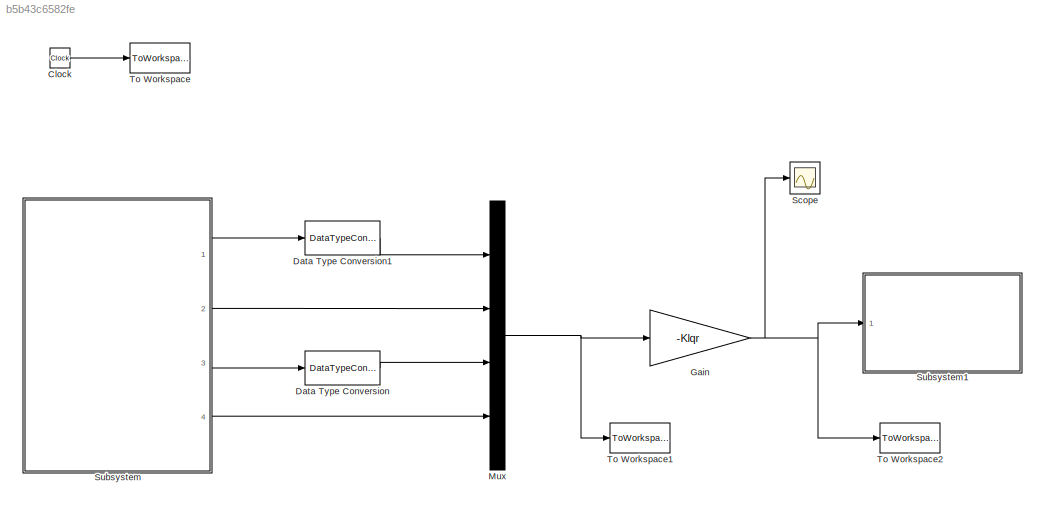
MODEL slx_b5b43c6582fe
KIND model
CONFIG AbsTol = auto
CONFIG EnableMultiTasking = on
CONFIG FixedStep = auto
CONFIG MaxStep = auto
CONFIG MinStep = auto
CONFIG RelTol = 1e-3
CONFIG SampleTimeConstraint = Unconstrained
CONFIG Solver = ode45
CONFIG SolverName = ode45
CONFIG StartTime = 0.0
CONFIG StopTime = 10.0
BLOCK [Clock] Clock
BLOCK [DataTypeConversion] Data Type Conversion
  OutDataTypeStr = double
  RndMeth = Floor
  SaturateOnIntegerOverflow = off
BLOCK [DataTypeConversion] Data Type Conversion1
  OutDataTypeStr = double
  RndMeth = Floor
  SaturateOnIntegerOverflow = off
BLOCK [Gain] Gain
  Gain = -Klqr
  Multiplication = Matrix(K*u)
  OutDataTypeStr = Inherit: Inherit via internal rule
  ParamDataTypeStr = Inherit: Inherit via internal rule
  SaturateOnIntegerOverflow = off
BLOCK [Mux] Mux
  DisplayOption = bar
  Ports = [4, 1]
BLOCK [Scope] Scope
  NumInputPorts = 1
  Ports = [1]
  ScopeSpecificationString = C++SS(StrPVP('Location','[188, 365, 512, 604]'),StrPVP('Open','off'),MxPVP('AxesTitles',24,'struct(''axes1'',''%<SignalLabel>'')'),StrPVP('SaveName','ScopeData2'),StrPVP('LimitDataPoints','on'),StrPVP('DataFormat','Array'),StrPVP('Decimation','1'),StrPVP('BlockParamSampleInput','off'))
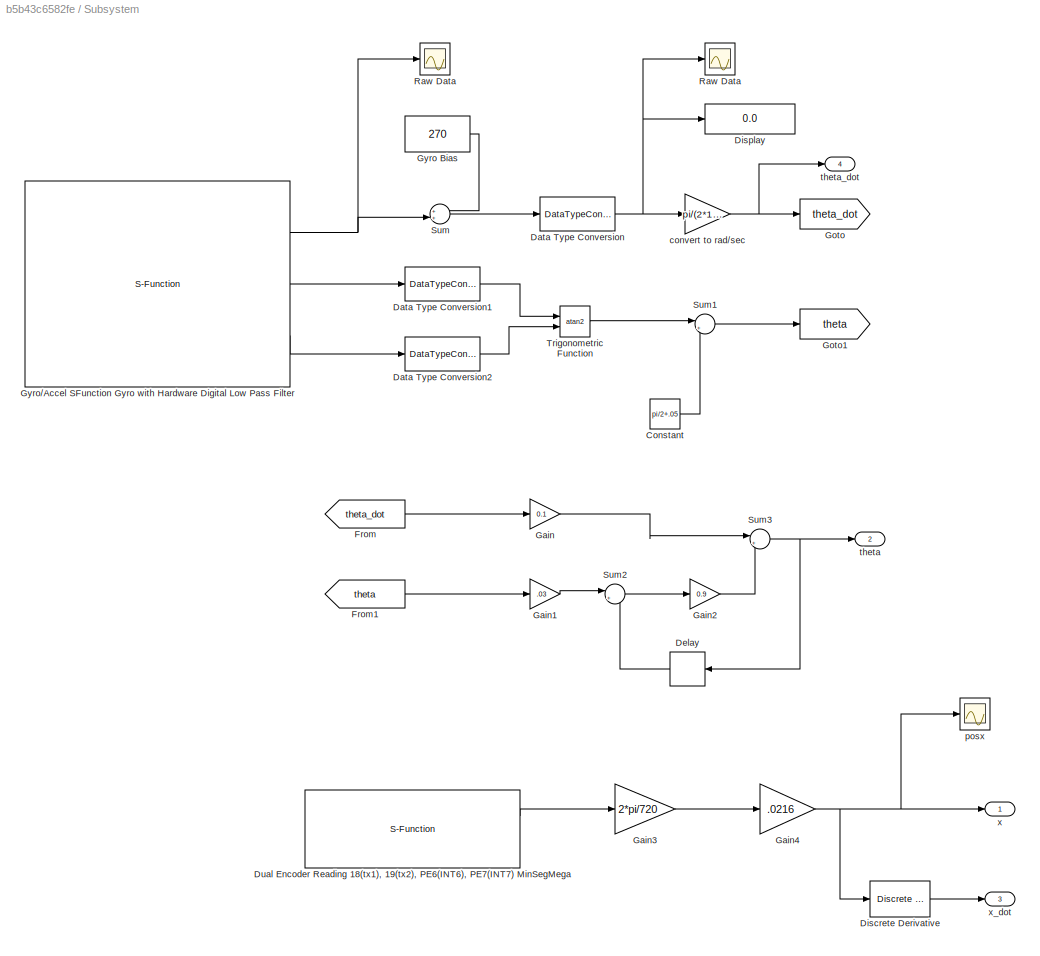
BLOCK [SubSystem] Subsystem
  Ports = [0, 4]
  RequestExecContextInheritance = off
  Variant = off
BLOCK [Constant] Subsystem/Constant
  Value = pi/2+.05
BLOCK [DataTypeConversion] Subsystem/Data Type Conversion
  OutDataTypeStr = double
  RndMeth = Floor
  SaturateOnIntegerOverflow = off
BLOCK [DataTypeConversion] Subsystem/Data Type Conversion1
  OutDataTypeStr = double
  RndMeth = Floor
  SaturateOnIntegerOverflow = off
BLOCK [DataTypeConversion] Subsystem/Data Type Conversion2
  OutDataTypeStr = double
  RndMeth = Floor
  SaturateOnIntegerOverflow = off
BLOCK [Delay] Subsystem/Delay
  DelayLength = 1
  InputPortMap = u0
  Ports = [1, 1]
BLOCK [Reference] Subsystem/Discrete Derivative  REF=simulink/Discrete/Discrete Derivative
  Ports = [1, 1]
  SourceBlock = simulink/Discrete/Discrete Derivative
  SourceType = Discrete Derivative
BLOCK [Display] Subsystem/Display
  Decimation = 1
  Ports = [1]
BLOCK [S-Function] Subsystem/Dual Encoder Reading 18(tx1), 19(tx2), PE6(INT6), PE7(INT7) MinSegMega 
  CopyFcn = set_param(gcbh,'LinkStatus','none')
  EnableBusSupport = off
  FunctionName = sf_QuadEncoder_18_19_INT6_INT7
  InitFcn = try, set_param(gcb,'FunctionName','sf_QuadEncoder_18_19_INT6_INT7'), end
  OpenFcn = sfunctionwizard(gcbh)
  Parameters = uint8([0 1]),uint8([18 6]),uint8([19 7])
  Ports = [0, 2]
  PreSaveFcn = try, set_param(gcb,'FunctionName','sf_QuadEncoder_18_19_INT6_INT7'), end
  SFcnIsStateOwnerBlock = off
  SFunctionDeploymentMode = off
  SFunctionModules = sf_QuadEncoder_18_19_INT6_INT7_wrapper
BLOCK [From] Subsystem/From
  GotoTag = theta_dot
BLOCK [From] Subsystem/From1
  GotoTag = theta
BLOCK [Gain] Subsystem/Gain
  Gain = 0.1
  OutDataTypeStr = Inherit: Inherit via internal rule
  ParamDataTypeStr = Inherit: Inherit via internal rule
  SaturateOnIntegerOverflow = off
BLOCK [Gain] Subsystem/Gain1
  Gain = .03
  OutDataTypeStr = Inherit: Inherit via internal rule
  ParamDataTypeStr = Inherit: Inherit via internal rule
  SaturateOnIntegerOverflow = off
BLOCK [Gain] Subsystem/Gain2
  Gain = 0.9
  OutDataTypeStr = Inherit: Inherit via internal rule
  ParamDataTypeStr = Inherit: Inherit via internal rule
  SaturateOnIntegerOverflow = off
BLOCK [Gain] Subsystem/Gain3
  Gain = 2*pi/720
  OutDataTypeStr = Inherit: Inherit via internal rule
  ParamDataTypeStr = Inherit: Inherit via internal rule
  SaturateOnIntegerOverflow = off
BLOCK [Gain] Subsystem/Gain4
  Gain = .0216
  OutDataTypeStr = Inherit: Inherit via internal rule
  ParamDataTypeStr = Inherit: Inherit via internal rule
  SaturateOnIntegerOverflow = off
BLOCK [Goto] Subsystem/Goto
  GotoTag = theta_dot
BLOCK [Goto] Subsystem/Goto1
  GotoTag = theta
BLOCK [Constant] Subsystem/Gyro Bias
  Value = 270
BLOCK [S-Function] Subsystem/Gyro//Accel SFunction Gyro with Hardware Digital Low Pass Filter
  CopyFcn = set_param(gcbh,'LinkStatus','none')
  EnableBusSupport = off
  FunctionName = sf_MPU6050_Driver_GxAyz
  InitFcn = try, set_param(gcb,'FunctionName','sf_MPU6050_Driver_GxAyz'), end
  OpenFcn = sfunctionwizard(gcbh)
  Ports = [0, 3]
  PreSaveFcn = try, set_param(gcb,'FunctionName','sf_MPU6050_Driver_GxAyz'), end
  SFcnIsStateOwnerBlock = off
  SFunctionDeploymentMode = off
  SFunctionModules = sf_MPU6050_Driver_GxAyz_wrapper
BLOCK [Scope] Subsystem/Raw Data
  NumInputPorts = 1
  Ports = [1]
  ScopeSpecificationString = Simulink.scopes.TimeScopeBlockCfg('CurrentConfiguration', extmgr.ConfigurationSet(extmgr.Configuration('Core','General UI',true),extmgr.Configuration('Core','Source UI',true),extmgr.Configuration('Sources','WiredSimulink',true,'DataLoggingVariableName','ScopeData1','DataLoggingLimitDataPoints',true,'DataLoggingSaveFormat','Array','DataLoggingDecimation','1','DataLoggingDecimateData',true),extmgr.C...<+1648ch>
BLOCK [Scope] Subsystem/Raw Data 
  NumInputPorts = 1
  Ports = [1]
  ScopeSpecificationString = C++SS(StrPVP('Location','[1013, 332, 1337, 571]'),StrPVP('Open','off'),MxPVP('AxesTitles',24,'struct(''axes1'',''%<SignalLabel>'')'),MxPVP('ScopeGraphics',28,'struct(''FigureColor'',''[0.5 0.5 0.5]'',''AxesColor'',''[0 0 0]'',''AxesTickColor'',''[1 1 1]'',''LineColors'',''[1 1 0;1 0 1;0 1 1;1 0 0;0 1 0;0 0 1]'',''LineStyles'',''-|-|-|-|-|-'',''LineWidths'',''[0.5 0.5 0.5 0.5 0.5 0.5]'',''MarkerSty...<+166ch>
BLOCK [Sum] Subsystem/Sum
  IconShape = round
  InputSameDT = off
  Inputs = ++|
  OutDataTypeStr = Inherit: Inherit via internal rule
  Ports = [2, 1]
  SaturateOnIntegerOverflow = off
BLOCK [Sum] Subsystem/Sum1
  IconShape = round
  InputSameDT = off
  Inputs = |++
  OutDataTypeStr = Inherit: Inherit via internal rule
  Ports = [2, 1]
  SaturateOnIntegerOverflow = off
BLOCK [Sum] Subsystem/Sum2
  IconShape = round
  InputSameDT = off
  Inputs = |++
  OutDataTypeStr = Inherit: Inherit via internal rule
  Ports = [2, 1]
  SaturateOnIntegerOverflow = off
BLOCK [Sum] Subsystem/Sum3
  IconShape = round
  InputSameDT = off
  Inputs = |++
  OutDataTypeStr = Inherit: Inherit via internal rule
  Ports = [2, 1]
  SaturateOnIntegerOverflow = off
BLOCK [Trigonometry] Subsystem/Trigonometric Function
  Operator = atan2
  Ports = [2, 1]
BLOCK [Gain] Subsystem/convert to rad//sec
  Gain = pi/(2*1.15e4)
  OutDataTypeStr = Inherit: Inherit via internal rule
  ParamDataTypeStr = Inherit: Inherit via internal rule
  SaturateOnIntegerOverflow = off
BLOCK [Scope] Subsystem/posx
  NumInputPorts = 1
  Ports = [1]
  ScopeSpecificationString = C++SS(StrPVP('Location','[1137, 298, 1461, 537]'),StrPVP('Open','off'),MxPVP('AxesTitles',24,'struct(''axes1'',''%<SignalLabel>'')'),MxPVP('ScopeGraphics',28,'struct(''FigureColor'',''[0.5 0.5 0.5]'',''AxesColor'',''[0 0 0]'',''AxesTickColor'',''[1 1 1]'',''LineColors'',''[1 1 0;1 0 1;0 1 1;1 0 0;0 1 0;0 0 1]'',''LineStyles'',''-|-|-|-|-|-'',''LineWidths'',''[0.5 0.5 0.5 0.5 0.5 0.5]'',''MarkerSty...<+270ch>
BLOCK [Outport] Subsystem/theta 
  IconDisplay = Port number
  Port = 2
BLOCK [Outport] Subsystem/theta_dot 
  IconDisplay = Port number
  Port = 4
BLOCK [Outport] Subsystem/x
  IconDisplay = Port number
BLOCK [Outport] Subsystem/x_dot
  IconDisplay = Port number
  Port = 3
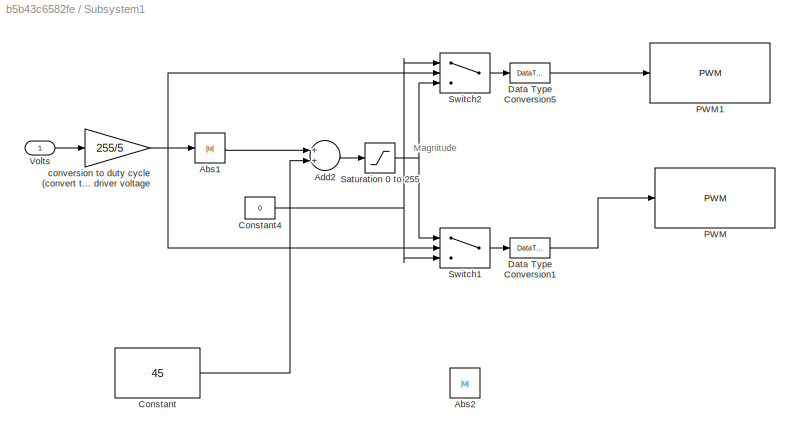
BLOCK [SubSystem] Subsystem1
  Ports = [1]
  RequestExecContextInheritance = off
  Variant = off
BLOCK [Abs] Subsystem1/Abs1
  SaturateOnIntegerOverflow = off
BLOCK [Abs] Subsystem1/Abs2
  SaturateOnIntegerOverflow = off
BLOCK [Sum] Subsystem1/Add2
  InputSameDT = off
  OutDataTypeStr = Inherit: Inherit via internal rule
  Ports = [2, 1]
  SaturateOnIntegerOverflow = off
BLOCK [Constant] Subsystem1/Constant
  Value = 45
BLOCK [Constant] Subsystem1/Constant4
  Value = 0
BLOCK [DataTypeConversion] Subsystem1/Data Type Conversion1
  OutDataTypeStr = uint8
  RndMeth = Floor
  SaturateOnIntegerOverflow = off
BLOCK [DataTypeConversion] Subsystem1/Data Type Conversion5
  OutDataTypeStr = uint8
  RndMeth = Floor
  SaturateOnIntegerOverflow = off
BLOCK [Reference] Subsystem1/PWM  REF=arduinolib/PWM
  Ports = [1]
  SourceBlock = arduinolib/PWM
  SourceType = Arduino PWM
BLOCK [Reference] Subsystem1/PWM1  REF=arduinolib/PWM
  Ports = [1]
  SourceBlock = arduinolib/PWM
  SourceType = Arduino PWM
BLOCK [Saturate] Subsystem1/Saturation 0 to 255
  InputPortMap = u0
  LowerLimit = 0
  Ports = [1, 1]
  UpperLimit = 255
BLOCK [Switch] Subsystem1/Switch1
  InputSameDT = off
  SaturateOnIntegerOverflow = off
BLOCK [Switch] Subsystem1/Switch2
  InputSameDT = off
  SaturateOnIntegerOverflow = off
BLOCK [Inport] Subsystem1/Volts
  IconDisplay = Port number
BLOCK [Gain] Subsystem1/conversion to duty cycle (convert to int) denominator is motor driver voltage
  Gain = 255/5
  OutDataTypeStr = int16
  ParamDataTypeStr = Inherit: Inherit via internal rule
  SaturateOnIntegerOverflow = off
BLOCK [ToWorkspace] To Workspace
  FixptAsFi = on
  MaxDataPoints = inf
  Ports = [1]
  SampleTime = -1
  Save2DSignal = 3-D array (concatenate along third dimension)
  SaveFormat = Timeseries
  VariableName = simout
BLOCK [ToWorkspace] To Workspace1
  FixptAsFi = on
  MaxDataPoints = inf
  Ports = [1]
  SampleTime = -1
  Save2DSignal = 3-D array (concatenate along third dimension)
  VariableName = q_gyroonly
BLOCK [ToWorkspace] To Workspace2
  FixptAsFi = on
  MaxDataPoints = inf
  Ports = [1]
  SampleTime = -1
  Save2DSignal = 3-D array (concatenate along third dimension)
  VariableName = V_gyroonly
ANNOTATION Subsystem1: Magnitude
LINE Clock:1 -> To Workspace:1
LINE Data Type Conversion1:1 -> Mux:1
LINE Data Type Conversion:1 -> Mux:3
NET Gain:1 -> Scope:1, Subsystem1:1, To Workspace2:1
NET Mux:1 -> Gain:1, To Workspace1:1
LINE Subsystem/Constant:1 -> Subsystem/Sum1:2
LINE Subsystem/Data Type Conversion1:1 -> Subsystem/Trigonometric Function:1
LINE Subsystem/Data Type Conversion2:1 -> Subsystem/Trigonometric Function:2
NET Subsystem/Data Type Conversion:1 -> Subsystem/Display:1, Subsystem/Raw Data:1, Subsystem/convert to rad//sec:1
LINE Subsystem/Delay:1 -> Subsystem/Sum2:2
LINE Subsystem/Discrete Derivative:1 -> Subsystem/x_dot:1
LINE Subsystem/Dual Encoder Reading 18(tx1), 19(tx2), PE6(INT6), PE7(INT7) MinSegMega :1 -> Subsystem/Gain3:1
LINE Subsystem/From1:1 -> Subsystem/Gain1:1
LINE Subsystem/From:1 -> Subsystem/Gain:1
LINE Subsystem/Gain1:1 -> Subsystem/Sum2:1
LINE Subsystem/Gain2:1 -> Subsystem/Sum3:2
LINE Subsystem/Gain3:1 -> Subsystem/Gain4:1
NET Subsystem/Gain4:1 -> Subsystem/Discrete Derivative:1, Subsystem/posx:1, Subsystem/x:1
LINE Subsystem/Gain:1 -> Subsystem/Sum3:1
LINE Subsystem/Gyro Bias:1 -> Subsystem/Sum:1
NET Subsystem/Gyro//Accel SFunction Gyro with Hardware Digital Low Pass Filter:1 -> Subsystem/Raw Data :1, Subsystem/Sum:2
LINE Subsystem/Gyro//Accel SFunction Gyro with Hardware Digital Low Pass Filter:2 -> Subsystem/Data Type Conversion1:1
LINE Subsystem/Gyro//Accel SFunction Gyro with Hardware Digital Low Pass Filter:3 -> Subsystem/Data Type Conversion2:1
LINE Subsystem/Sum1:1 -> Subsystem/Goto1:1
LINE Subsystem/Sum2:1 -> Subsystem/Gain2:1
NET Subsystem/Sum3:1 -> Subsystem/Delay:1, Subsystem/theta :1
LINE Subsystem/Sum:1 -> Subsystem/Data Type Conversion:1
LINE Subsystem/Trigonometric Function:1 -> Subsystem/Sum1:1
NET Subsystem/convert to rad//sec:1 -> Subsystem/Goto:1, Subsystem/theta_dot :1
LINE Subsystem1/Abs1:1 -> Subsystem1/Add2:1
LINE Subsystem1/Add2:1 -> Subsystem1/Saturation 0 to 255:1
NET Subsystem1/Constant4:1 -> Subsystem1/Switch1:3, Subsystem1/Switch2:1
LINE Subsystem1/Constant:1 -> Subsystem1/Add2:2
LINE Subsystem1/Data Type Conversion1:1 -> Subsystem1/PWM:1
LINE Subsystem1/Data Type Conversion5:1 -> Subsystem1/PWM1:1
NET Subsystem1/Saturation 0 to 255:1 -> Subsystem1/Switch1:1, Subsystem1/Switch2:3
LINE Subsystem1/Switch1:1 -> Subsystem1/Data Type Conversion1:1
LINE Subsystem1/Switch2:1 -> Subsystem1/Data Type Conversion5:1
LINE Subsystem1/Volts:1 -> Subsystem1/conversion to duty cycle (convert to int) denominator is motor driver voltage:1
NET Subsystem1/conversion to duty cycle (convert to int) denominator is motor driver voltage:1 -> Subsystem1/Abs1:1, Subsystem1/Switch1:2, Subsystem1/Switch2:2
LINE Subsystem:1 -> Data Type Conversion1:1
LINE Subsystem:2 -> Mux:2
LINE Subsystem:3 -> Data Type Conversion:1
LINE Subsystem:4 -> Mux:4
note: NET lines group one-source signal fan-out (src -> all destinations, sorted); 1:1 wires keep LINE
